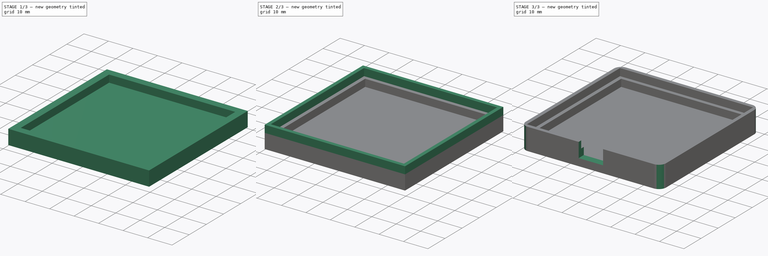
[diagram: build sequence overview — one tinted view per stage of 3, left to right]
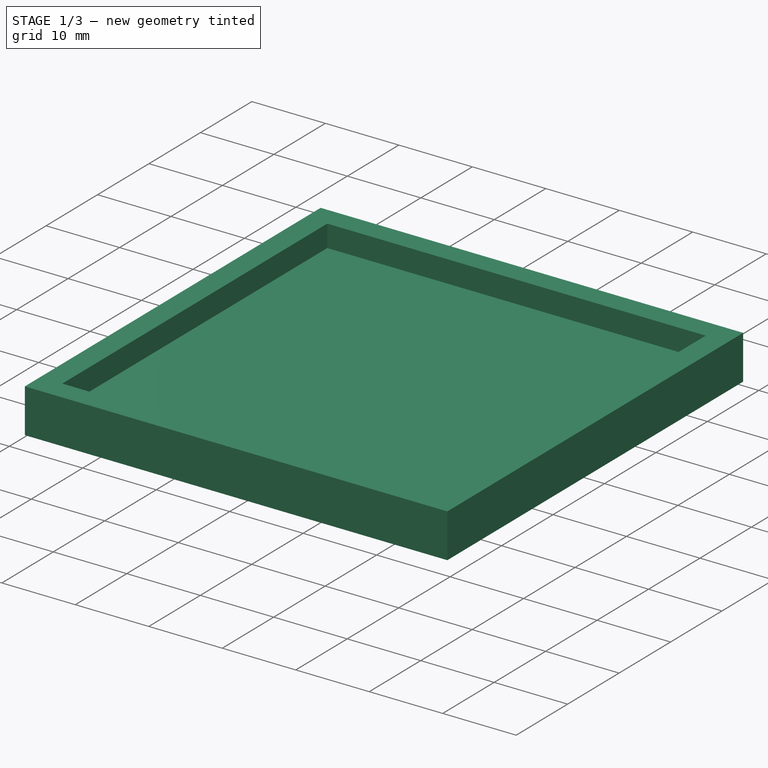
[diagram: stage 1 of 3 — iso view after this stage's code; geometry added in this stage tinted green]
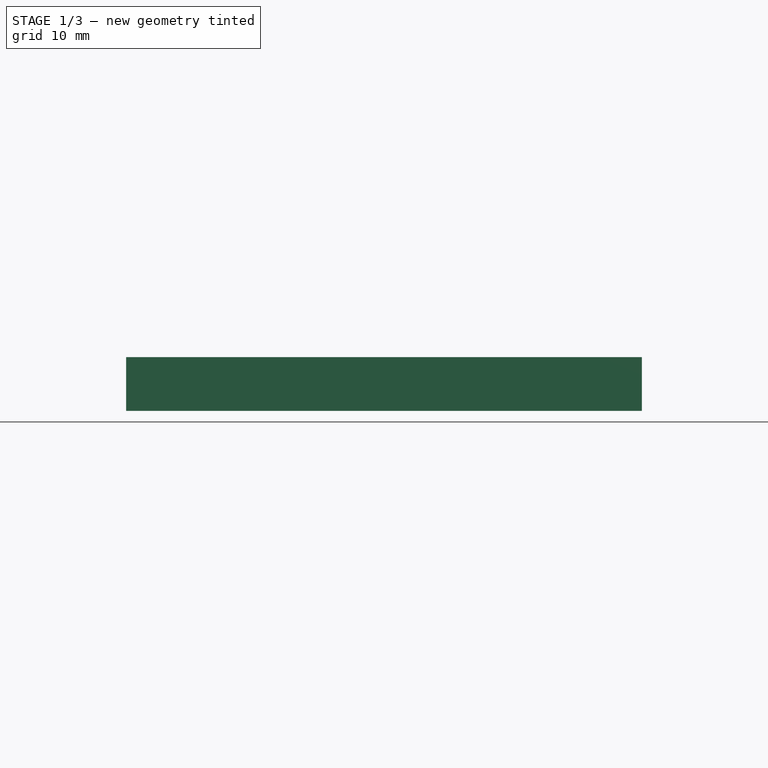
[diagram: stage 1 of 3 — front view after this stage's code; geometry added in this stage tinted green]
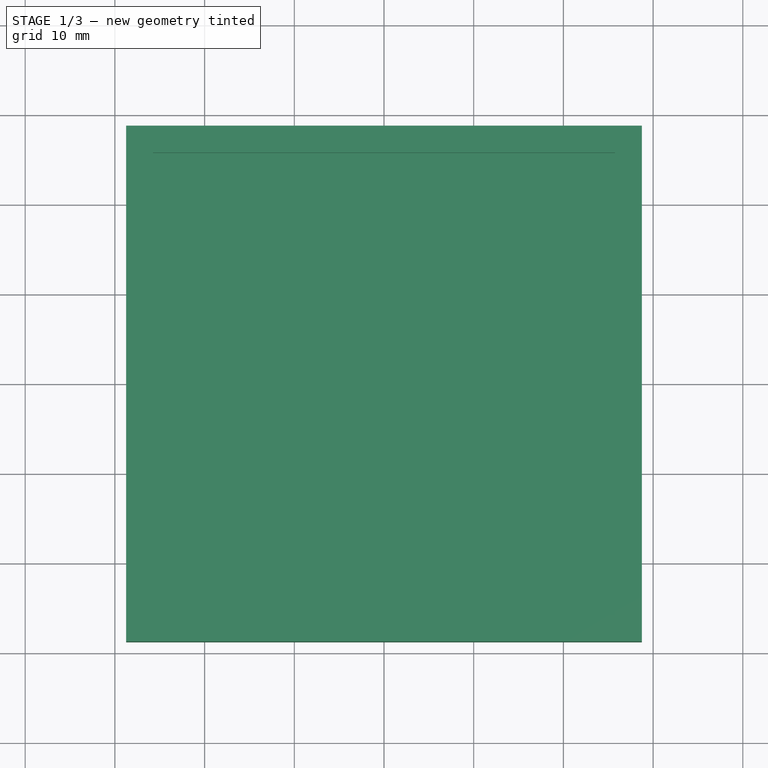
[diagram: stage 1 of 3 — top view after this stage's code; geometry added in this stage tinted green]
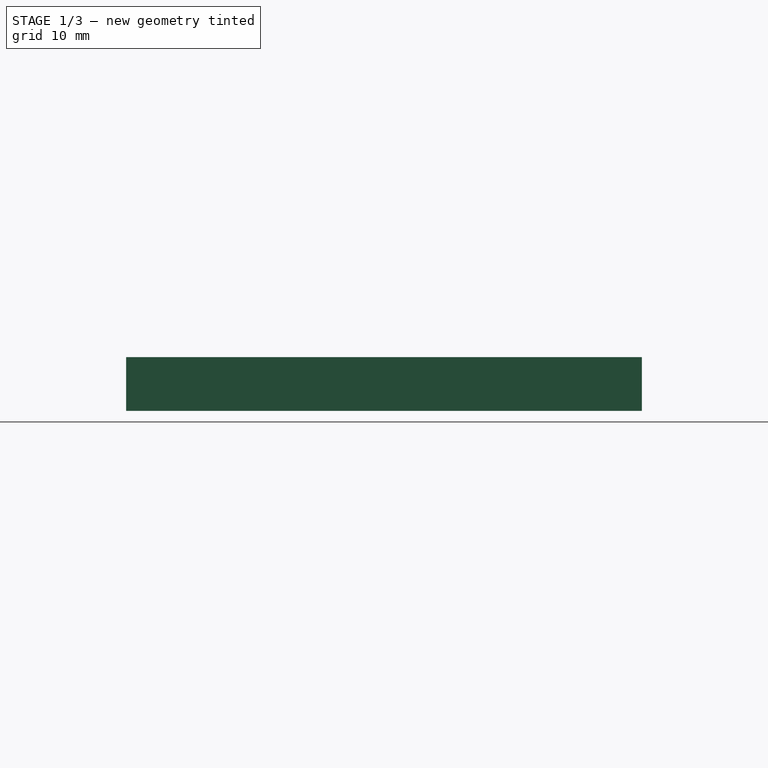
[diagram: stage 1 of 3 — right view after this stage's code; geometry added in this stage tinted green]
FCSTD DOCUMENT  (FreeCAD 0.20R29603 (Git))
Label: Bottom
License: All rights reserved
LicenseURL: http://en.wikipedia.org/wiki/All_rights_reserved
objects: Sketcher::SketchObject×4, PartDesign::Pad×3, PartDesign::Pocket×1, PartDesign::Fillet×1, PartDesign::Body×1
note: 15 computed .brp shape members not serialized (recipe doc carries the construction recipe); baked Part::Feature solids carry a one-line shape summary decoded from their .brp

FEATURE [Sketcher::SketchObject] Sketch
  FullyConstrained = true
  MapMode = 5
  Support = -> [XY_Plane]
  sketch-geometry (6):
    g0: LineSegment StartX=-28.75 StartY=28.75 StartZ=0 EndX=28.75 EndY=28.75 EndZ=0
    g1: LineSegment StartX=28.75 StartY=28.75 StartZ=0 EndX=28.75 EndY=-28.75 EndZ=0
    g2: LineSegment StartX=28.75 StartY=-28.75 StartZ=0 EndX=-28.75 EndY=-28.75 EndZ=0
    g3: LineSegment StartX=-28.75 StartY=-28.75 StartZ=0 EndX=-28.75 EndY=28.75 EndZ=0
    g4: LineSegment StartX=-28.75 StartY=28.75 StartZ=0 EndX=28.75 EndY=-28.75 EndZ=0
    g5: LineSegment StartX=-28.75 StartY=-28.75 StartZ=0 EndX=28.75 EndY=28.75 EndZ=0
  constraints (16):
    c: Coincident(g0,g1)
    c: Coincident(g1,g2)
    c: Coincident(g2,g3)
    c: Coincident(g3,g0)
    c: Horizontal(g0)
    c: Horizontal(g2)
    c: Vertical(g1)
    c: Vertical(g3)
    c: Equal(g0,g1)
    c: DistanceY(g1,g1) = 57.5
    c: Coincident(g4,g0)
    c: Coincident(g4,g1)
    c: Coincident(g5,g2)
    c: Coincident(g5,g0)
    c: PointOnObject(g-1,g4)
    c: PointOnObject(g-1,g5)
FEATURE [PartDesign::Pad] Pad
  Direction = (0,0,1)
  Length = 3
  Length2 = 10
  Profile = -> Sketch
  ReferenceAxis = -> Sketch [N_Axis]
  Type = 0
FEATURE [Sketcher::SketchObject] Sketch001
  ExternalGeometry = -> [Pad]
  FullyConstrained = true
  MapMode = 5
  Placement = pos=(0,0,3) rot=(0,0,1;0rad)
  Support = -> [Pad]
  sketch-geometry (8):
    g0: LineSegment StartX=-28.75 StartY=28.75 StartZ=0 EndX=28.75 EndY=28.75 EndZ=0
    g1: LineSegment StartX=28.75 StartY=28.75 StartZ=0 EndX=28.75 EndY=-28.75 EndZ=0
    g2: LineSegment StartX=28.75 StartY=-28.75 StartZ=0 EndX=-28.75 EndY=-28.75 EndZ=0
    g3: LineSegment StartX=-28.75 StartY=-28.75 StartZ=0 EndX=-28.75 EndY=28.75 EndZ=0
    g4: LineSegment StartX=-25.75 StartY=25.75 StartZ=0 EndX=25.75 EndY=25.75 EndZ=0
    g5: LineSegment StartX=25.75 StartY=25.75 StartZ=0 EndX=25.75 EndY=-25.75 EndZ=0
    g6: LineSegment StartX=25.75 StartY=-25.75 StartZ=0 EndX=-25.75 EndY=-25.75 EndZ=0
    g7: LineSegment StartX=-25.75 StartY=-25.75 StartZ=0 EndX=-25.75 EndY=25.75 EndZ=0
  constraints (22):
    c: Coincident(g0,g1)
    c: Coincident(g1,g2)
    c: Coincident(g2,g3)
    c: Coincident(g3,g0)
    c: Horizontal(g2)
    c: Vertical(g1)
    c: Vertical(g3)
    c: Coincident(g0,g-3)
    c: Coincident(g4,g5)
    c: Coincident(g5,g6)
    c: Coincident(g6,g7)
    c: Coincident(g7,g4)
    c: Horizontal(g4)
    c: Horizontal(g6)
    c: Vertical(g5)
    c: Vertical(g7)
    c: Coincident(g0,g-3)
    c: Equal(g1,g2)
    c: Equal(g6,g5)
    c: DistanceY(g4,g0) = 3
    c: DistanceY(g1,g5) = 3
    c: DistanceX(g5,g1) = 3
FEATURE [PartDesign::Pad] Pad001
  BaseFeature = -> Pad
  Direction = (0,0,1)
  Length = 3
  Length2 = 10
  Profile = -> Sketch001
  ReferenceAxis = -> Sketch001 [N_Axis]
  Type = 0
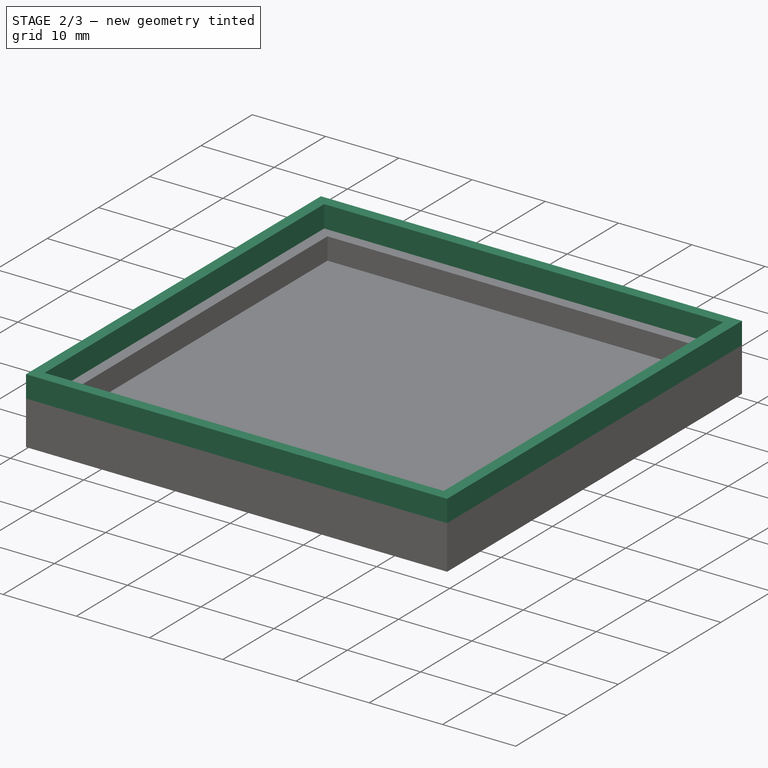
[diagram: stage 2 of 3 — iso view after this stage's code; geometry added in this stage tinted green]
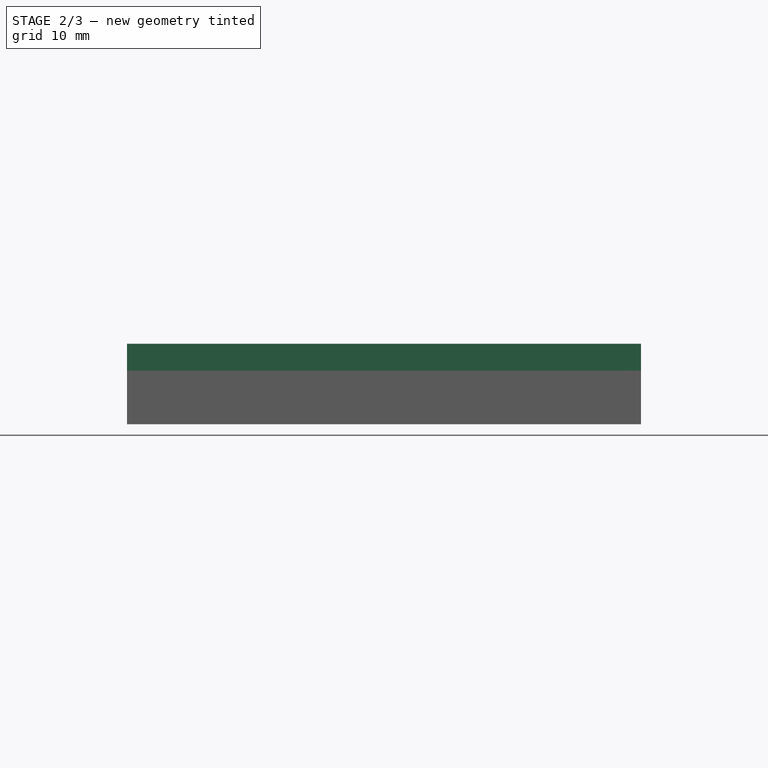
[diagram: stage 2 of 3 — front view after this stage's code; geometry added in this stage tinted green]
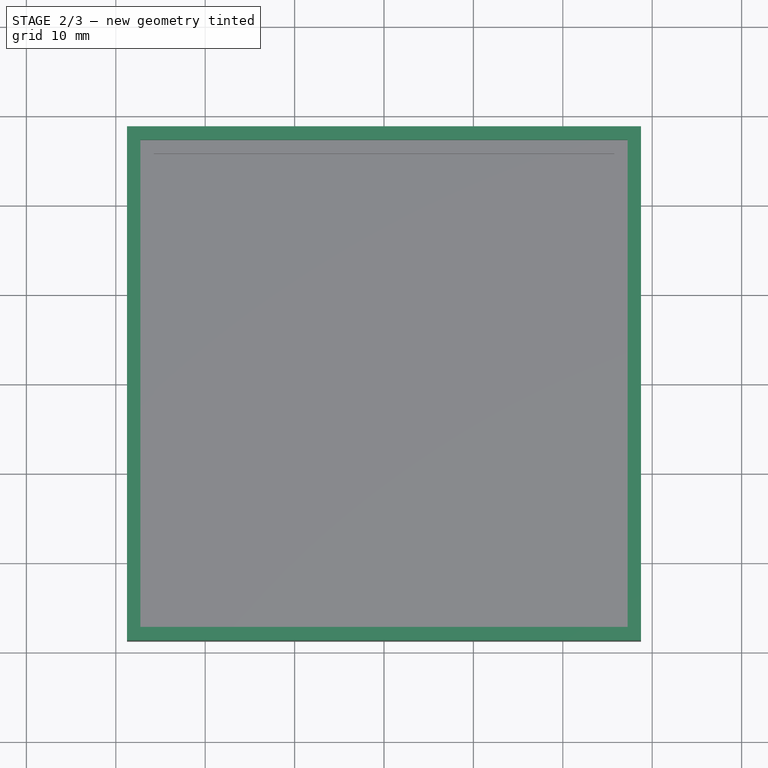
[diagram: stage 2 of 3 — top view after this stage's code; geometry added in this stage tinted green]
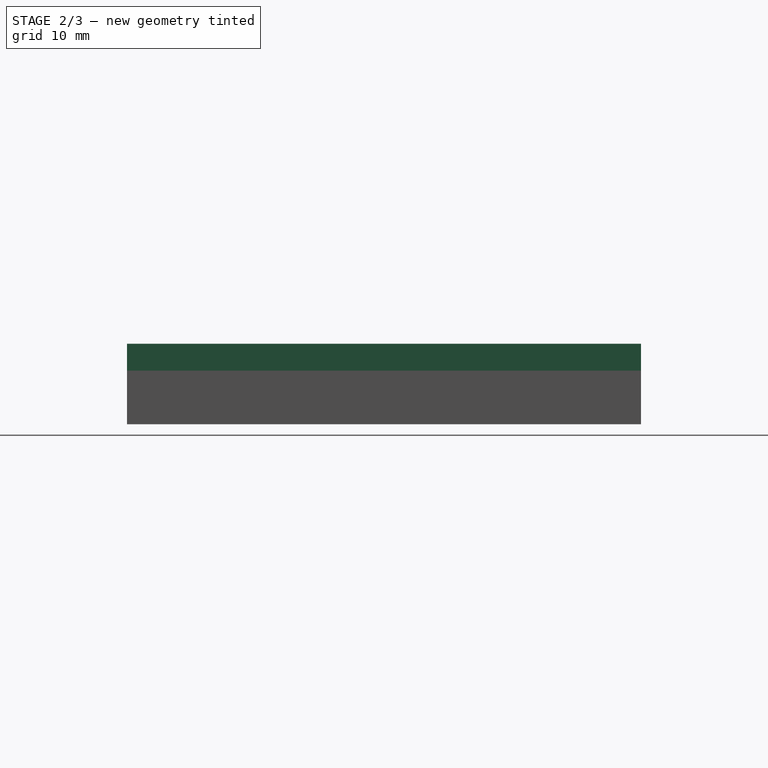
[diagram: stage 2 of 3 — right view after this stage's code; geometry added in this stage tinted green]
FEATURE [Sketcher::SketchObject] Sketch002
  ExternalGeometry = -> [Pad001]
  FullyConstrained = true
  MapMode = 5
  Placement = pos=(0,0,6) rot=(0,0,1;0rad)
  Support = -> [Pad001]
  sketch-geometry (8):
    g0: LineSegment StartX=-28.75 StartY=28.75 StartZ=0 EndX=28.75 EndY=28.75 EndZ=0
    g1: LineSegment StartX=28.75 StartY=28.75 StartZ=0 EndX=28.75 EndY=-28.75 EndZ=0
    g2: LineSegment StartX=28.75 StartY=-28.75 StartZ=0 EndX=-28.75 EndY=-28.75 EndZ=0
    g3: LineSegment StartX=-28.75 StartY=-28.75 StartZ=0 EndX=-28.75 EndY=28.75 EndZ=0
    g4: LineSegment StartX=-27.25 StartY=27.25 StartZ=0 EndX=27.25 EndY=27.25 EndZ=0
    g5: LineSegment StartX=27.25 StartY=27.25 StartZ=0 EndX=27.25 EndY=-27.25 EndZ=0
    g6: LineSegment StartX=27.25 StartY=-27.25 StartZ=0 EndX=-27.25 EndY=-27.25 EndZ=0
    g7: LineSegment StartX=-27.25 StartY=-27.25 StartZ=0 EndX=-27.25 EndY=27.25 EndZ=0
  constraints (22):
    c: Coincident(g0,g1)
    c: Coincident(g1,g2)
    c: Coincident(g2,g3)
    c: Coincident(g3,g0)
    c: Horizontal(g0)
    c: Horizontal(g2)
    c: Vertical(g1)
    c: Vertical(g3)
    c: Coincident(g0,g-6)
    c: Coincident(g1,g-5)
    c: Coincident(g4,g5)
    c: Coincident(g5,g6)
    c: Coincident(g6,g7)
    c: Coincident(g7,g4)
    c: Horizontal(g4)
    c: Horizontal(g6)
    c: Vertical(g5)
    c: Vertical(g7)
    c: DistanceY(g5,g-4) = 1.5
    c: Equal(g6,g5)
    c: DistanceX(g5,g1) = 1.5
    c: DistanceY(g4,g0) = 1.5
FEATURE [PartDesign::Pad] Pad002
  BaseFeature = -> Pad001
  Direction = (0,0,1)
  Length = 3
  Length2 = 10
  Profile = -> Sketch002
  ReferenceAxis = -> Sketch002 [N_Axis]
  Type = 0
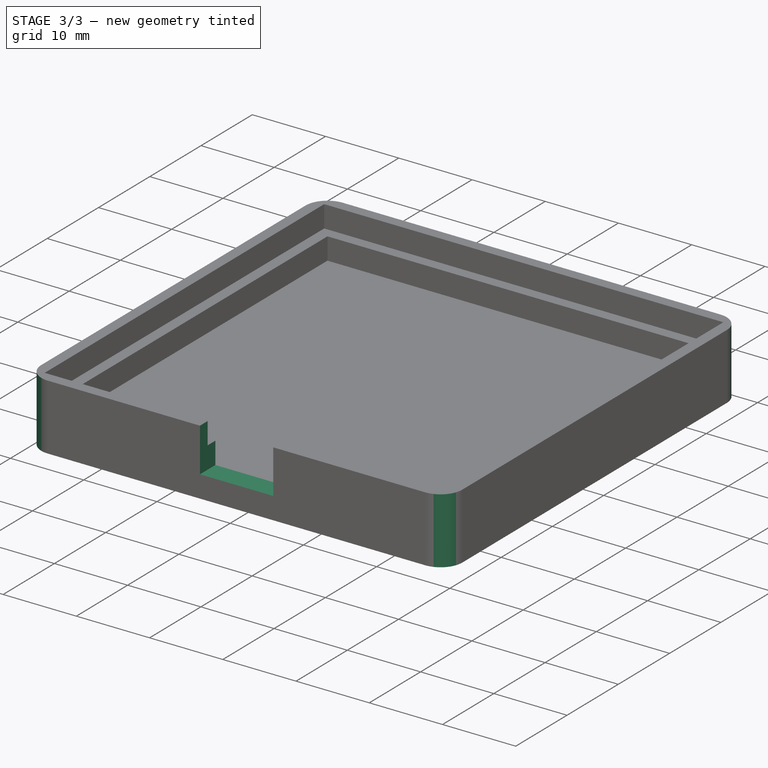
[diagram: stage 3 of 3 — iso view after this stage's code; geometry added in this stage tinted green]
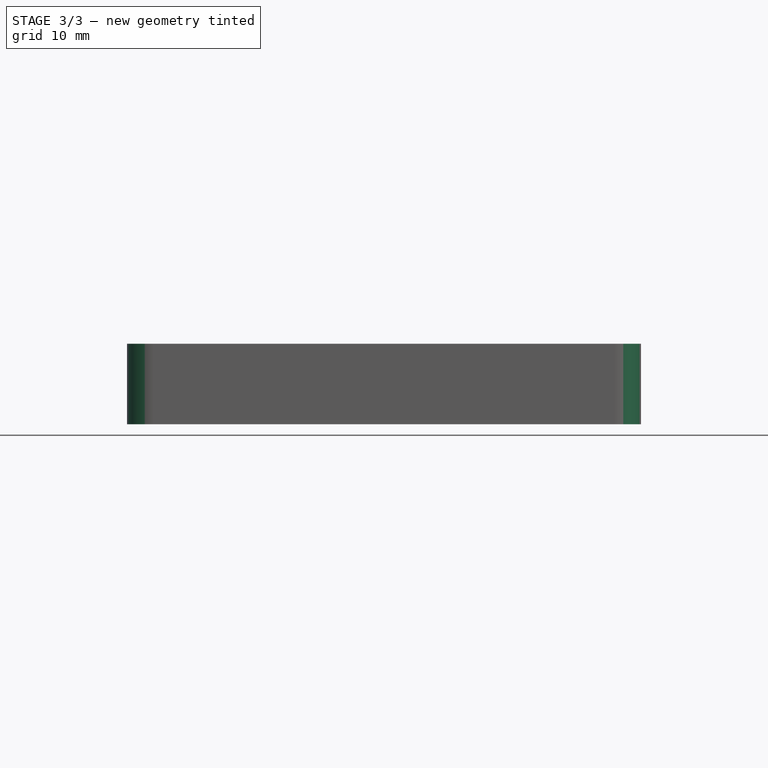
[diagram: stage 3 of 3 — front view after this stage's code; geometry added in this stage tinted green]
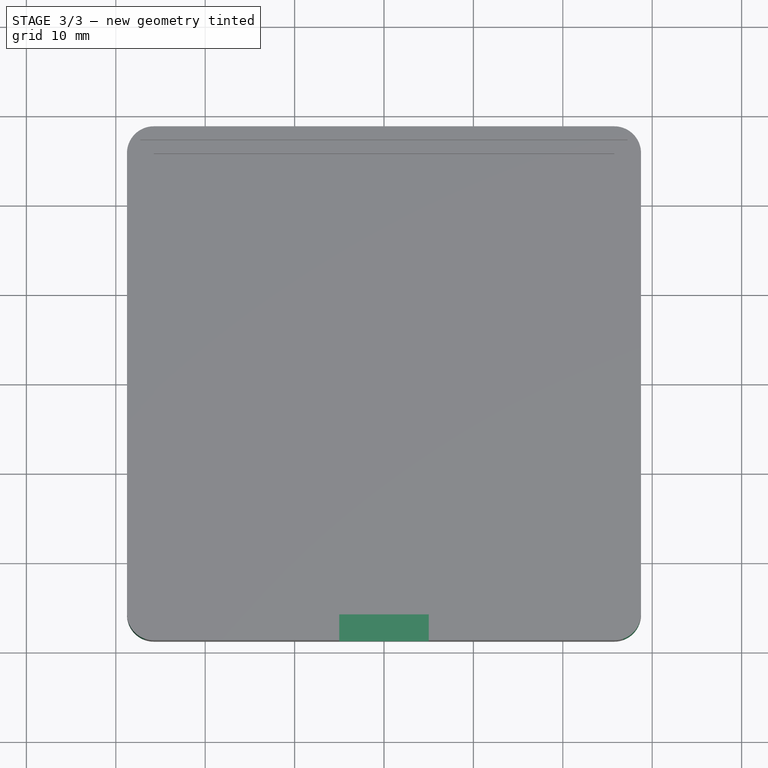
[diagram: stage 3 of 3 — top view after this stage's code; geometry added in this stage tinted green]
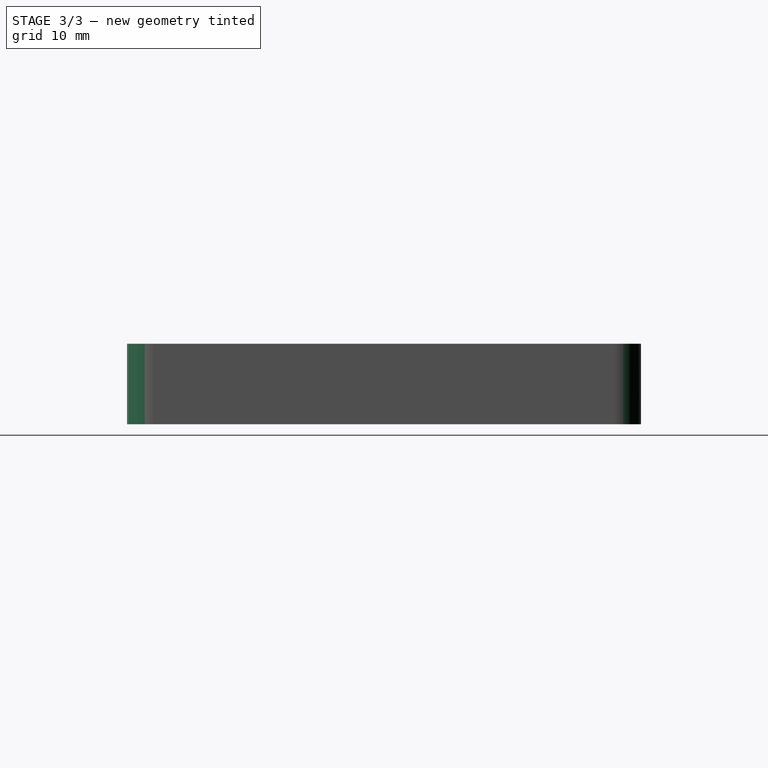
[diagram: stage 3 of 3 — right view after this stage's code; geometry added in this stage tinted green]
FEATURE [Sketcher::SketchObject] Sketch003
  ExternalGeometry = -> [Pad002]
  FullyConstrained = true
  MapMode = 5
  Placement = pos=(0,-28.75,0) rot=(1,0,0;1.5708rad)
  Support = -> [Pad002]
  sketch-geometry (4):
    g0: LineSegment StartX=-5 StartY=3 StartZ=0 EndX=5 EndY=3 EndZ=0
    g1: LineSegment StartX=5 StartY=3 StartZ=0 EndX=5 EndY=9 EndZ=0
    g2: LineSegment StartX=5 StartY=9 StartZ=0 EndX=-5 EndY=9 EndZ=0
    g3: LineSegment StartX=-5 StartY=9 StartZ=0 EndX=-5 EndY=3 EndZ=0
  constraints (12):
    c: Coincident(g0,g1)
    c: Coincident(g1,g2)
    c: Coincident(g2,g3)
    c: Coincident(g3,g0)
    c: Horizontal(g0)
    c: Horizontal(g2)
    c: Vertical(g1)
    c: Vertical(g3)
    c: PointOnObject(g0,g-3)
    c: DistanceY(g1,g1) = 6
    c: DistanceX(g2,g2) = 10
    c: DistanceX(g-1,g1) = 5
FEATURE [PartDesign::Pocket] Pocket
  BaseFeature = -> Pad002
  Direction = (0,1,-2e-16)
  Length = 5
  Length2 = 5
  Profile = -> Sketch003
  ReferenceAxis = -> Sketch003 [N_Axis]
  Type = 0
FEATURE [PartDesign::Fillet] Fillet
  Base = -> Pocket [Edge32,Edge18,Edge5,Edge22,Edge12,Edge1,Edge34,Edge20,Edge8,Edge2,Edge13,Edge23]
  BaseFeature = -> Pocket
  Radius = 3
  SupportTransform = false
  UseAllEdges = false
FEATURE [PartDesign::Body] Body
  Group = -> [Sketch,Pad,Sketch001,Pad001,Sketch002,Pad002,Sketch003,Pocket,Fillet]
  Origin = -> Origin
  Tip = -> Fillet
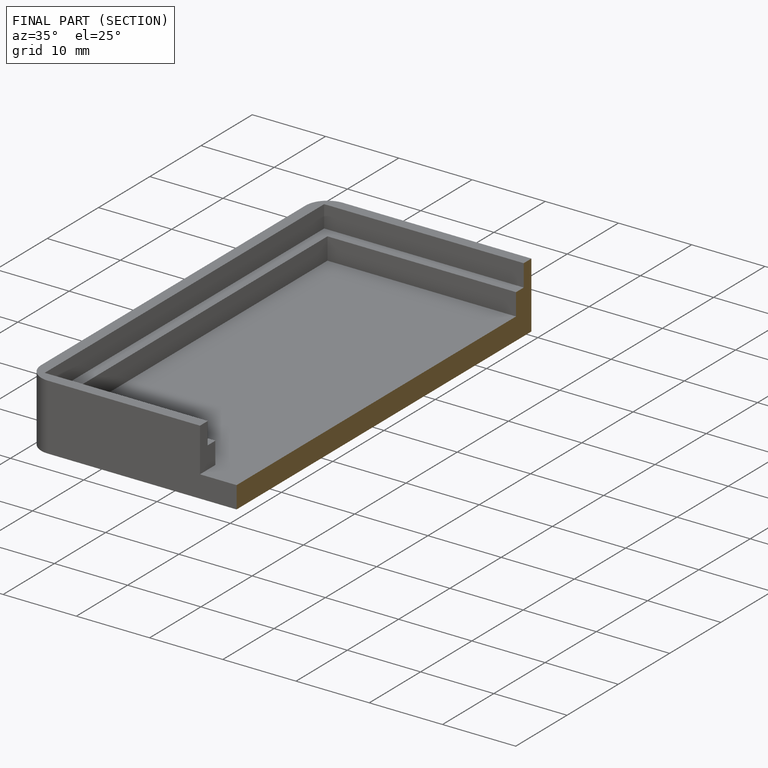
[diagram: finished part — half-section view (interior)]
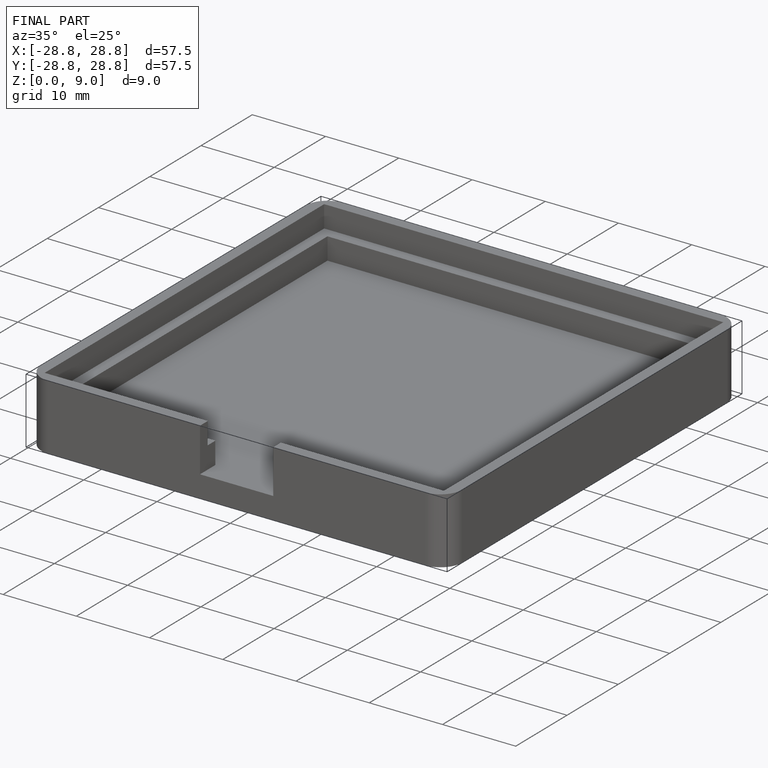
[diagram: finished part — iso view with bounding-box wireframe]
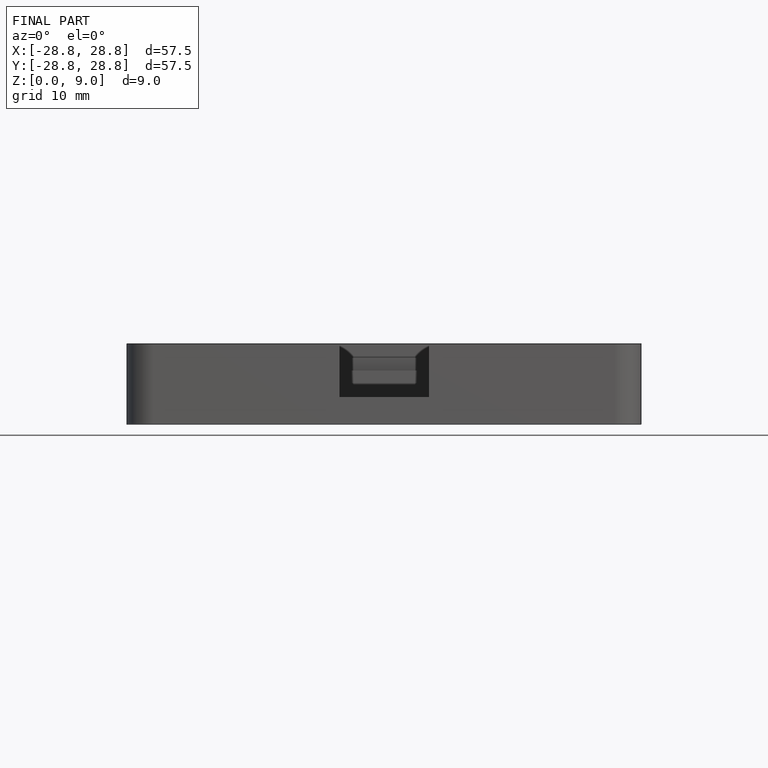
[diagram: finished part — front view with bounding-box wireframe]
